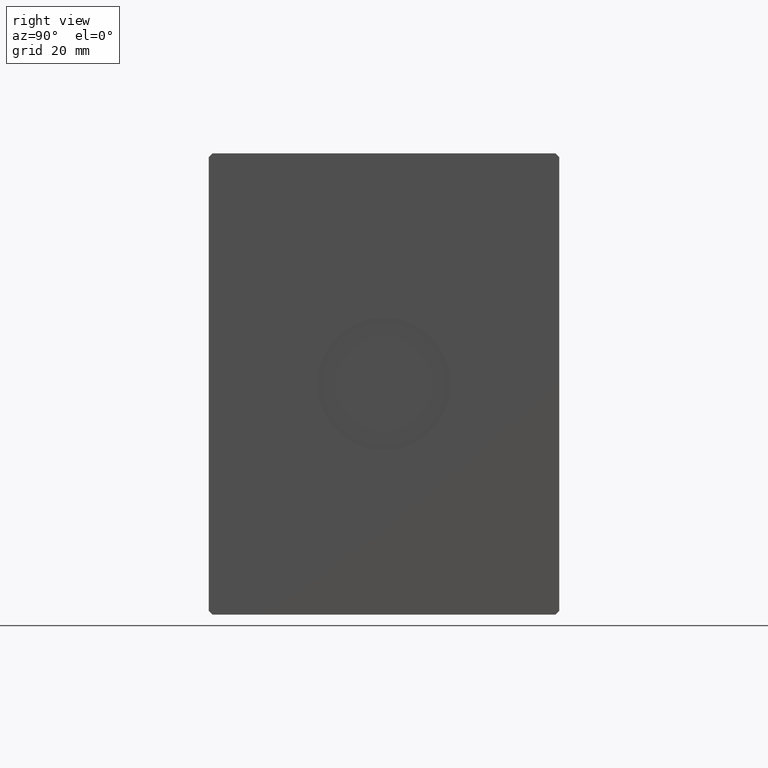
[diagram: clean part render]
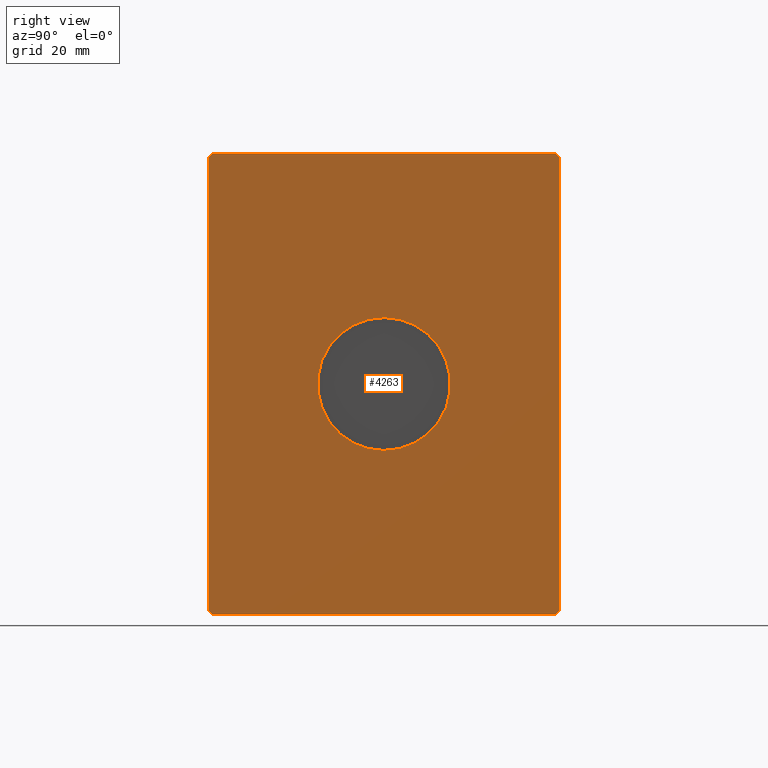
[diagram: same view with one face highlighted and labeled with its STEP entity id]
A machine part, right view. The second image highlights one B-rep face of the part: STEP entity #4263.
In plain terms, the highlighted planar face has unit normal (1, 0, 0).
Its self-contained STEP definition (entity closure, byte-faithful):
#112 = ORIENTED_EDGE ( 'NONE', *, *, #3831, .T. ) ;
#735 = CARTESIAN_POINT ( 'NONE',  ( 121.0000000000000000, 46.50000000000000000, -62.50000000000000000 ) ) ;
#752 = DIRECTION ( 'NONE',  ( 0.000000000000000000, -1.128275431529630729E-16, 1.000000000000000000 ) ) ;
#1071 = CARTESIAN_POINT ( 'NONE',  ( 121.0000000000000000, 2.204364238465235428E-15, 18.00000000000000000 ) ) ;
#1198 = VERTEX_POINT ( 'NONE', #39426 ) ;
#1202 = CARTESIAN_POINT ( 'NONE',  ( 121.0000000000000000, -46.50000000000000000, -62.50000000000001421 ) ) ;
#1235 = ORIENTED_EDGE ( 'NONE', *, *, #11204, .F. ) ;
#1772 = DIRECTION ( 'NONE',  ( 0.000000000000000000, 0.7071067811865574537, 0.7071067811865376918 ) ) ;
#1924 = AXIS2_PLACEMENT_3D ( 'NONE', #15408, #28322, #25153 ) ;
#2427 = CARTESIAN_POINT ( 'NONE',  ( 121.0000000000000000, -47.49999999999999289, -61.50000000000001421 ) ) ;
#2720 = CARTESIAN_POINT ( 'NONE',  ( 121.0000000000000000, 0.000000000000000000, -18.00000000000000000 ) ) ;
#3368 = VERTEX_POINT ( 'NONE', #20942 ) ;
#3404 = ORIENTED_EDGE ( 'NONE', *, *, #14907, .T. ) ;
#3606 = ORIENTED_EDGE ( 'NONE', *, *, #3990, .T. ) ;
#3831 = EDGE_CURVE ( 'NONE', #23346, #36064, #17450, .T. ) ;
#3990 = EDGE_CURVE ( 'NONE', #36064, #7125, #41804, .T. ) ;
#4263 = ADVANCED_FACE ( 'NONE', ( #22484, #23310 ), #16536, .T. ) ;
#4288 = VERTEX_POINT ( 'NONE', #9770 ) ;
#4439 = EDGE_CURVE ( 'NONE', #7125, #3368, #5717, .T. ) ;
#4960 = LINE ( 'NONE', #24218, #39493 ) ;
#5189 = CARTESIAN_POINT ( 'NONE',  ( 121.0000000000000000, -47.50000000000001421, 61.49999999999997868 ) ) ;
#5193 = VECTOR ( 'NONE', #30379, 1000.000000000000000 ) ;
#5717 = LINE ( 'NONE', #31331, #37628 ) ;
#7125 = VERTEX_POINT ( 'NONE', #1202 ) ;
#7147 = CARTESIAN_POINT ( 'NONE',  ( 121.0000000000000000, 47.50000000000000000, 61.49999999999998579 ) ) ;
#7704 = CARTESIAN_POINT ( 'NONE',  ( 121.0000000000000000, -46.50000000000001421, 62.49999999999997868 ) ) ;
#8233 = CARTESIAN_POINT ( 'NONE',  ( 121.0000000000000000, 46.50000000000000000, 62.49999999999998579 ) ) ;
#8568 = VECTOR ( 'NONE', #37776, 1000.000000000000114 ) ;
#9112 = ORIENTED_EDGE ( 'NONE', *, *, #22169, .T. ) ;
#9701 = AXIS2_PLACEMENT_3D ( 'NONE', #14666, #40290, #11282 ) ;
#9770 = CARTESIAN_POINT ( 'NONE',  ( 121.0000000000000000, 47.50000000000001421, -61.50000000000001421 ) ) ;
#9974 = DIRECTION ( 'NONE',  ( 1.000000000000000000, 0.000000000000000000, 0.000000000000000000 ) ) ;
#10281 = CARTESIAN_POINT ( 'NONE',  ( 121.0000000000000000, 47.50000000000001421, -61.50000000000001421 ) ) ;
#10914 = VECTOR ( 'NONE', #752, 1000.000000000000000 ) ;
#11204 = EDGE_CURVE ( 'NONE', #30133, #29579, #30326, .T. ) ;
#11282 = DIRECTION ( 'NONE',  ( 0.000000000000000000, 0.000000000000000000, -1.000000000000000000 ) ) ;
#11582 = VECTOR ( 'NONE', #30210, 1000.000000000000114 ) ;
#13224 = LINE ( 'NONE', #7704, #33788 ) ;
#13694 = EDGE_LOOP ( 'NONE', ( #1235, #30681 ) ) ;
#13702 = DIRECTION ( 'NONE',  ( 0.000000000000000000, -1.000000000000000000, -7.461176240760460157E-17 ) ) ;
#14666 = CARTESIAN_POINT ( 'NONE',  ( 121.0000000000000000, 0.000000000000000000, 0.000000000000000000 ) ) ;
#14858 = CARTESIAN_POINT ( 'NONE',  ( 121.0000000000000000, -47.50000000000001421, 61.49999999999997868 ) ) ;
#14907 = EDGE_CURVE ( 'NONE', #1198, #23346, #13224, .T. ) ;
#14917 = VERTEX_POINT ( 'NONE', #23594 ) ;
#14949 = EDGE_CURVE ( 'NONE', #3368, #4288, #29739, .T. ) ;
#15408 = CARTESIAN_POINT ( 'NONE',  ( 121.0000000000000000, 0.000000000000000000, 0.000000000000000000 ) ) ;
#15517 = VECTOR ( 'NONE', #1772, 999.9999999999998863 ) ;
#15654 = DIRECTION ( 'NONE',  ( 0.000000000000000000, 1.000000000000000000, 1.492235248152092278E-16 ) ) ;
#15913 = ORIENTED_EDGE ( 'NONE', *, *, #21800, .T. ) ;
#16536 = PLANE ( 'NONE',  #36926 ) ;
#17284 = LINE ( 'NONE', #7147, #11582 ) ;
#17450 = LINE ( 'NONE', #5189, #5193 ) ;
#17946 = ORIENTED_EDGE ( 'NONE', *, *, #4439, .T. ) ;
#20617 = LINE ( 'NONE', #10281, #10914 ) ;
#20942 = CARTESIAN_POINT ( 'NONE',  ( 121.0000000000000000, 46.50000000000000000, -62.50000000000000000 ) ) ;
#21800 = EDGE_CURVE ( 'NONE', #14917, #37725, #17284, .T. ) ;
#22169 = EDGE_CURVE ( 'NONE', #4288, #14917, #20617, .T. ) ;
#22484 = FACE_BOUND ( 'NONE', #13694, .T. ) ;
#23069 = ORIENTED_EDGE ( 'NONE', *, *, #14949, .T. ) ;
#23310 = FACE_OUTER_BOUND ( 'NONE', #32600, .T. ) ;
#23346 = VERTEX_POINT ( 'NONE', #14858 ) ;
#23386 = DIRECTION ( 'NONE',  ( 0.000000000000000000, -0.7071067811865474617, -0.7071067811865474617 ) ) ;
#23594 = CARTESIAN_POINT ( 'NONE',  ( 121.0000000000000000, 47.50000000000000000, 61.49999999999998579 ) ) ;
#24218 = CARTESIAN_POINT ( 'NONE',  ( 121.0000000000000000, 46.50000000000000000, 62.49999999999998579 ) ) ;
#25153 = DIRECTION ( 'NONE',  ( 0.000000000000000000, 0.000000000000000000, -1.000000000000000000 ) ) ;
#28046 = EDGE_CURVE ( 'NONE', #29579, #30133, #32701, .T. ) ;
#28322 = DIRECTION ( 'NONE',  ( 1.000000000000000000, 0.000000000000000000, 0.000000000000000000 ) ) ;
#29353 = EDGE_CURVE ( 'NONE', #37725, #1198, #4960, .T. ) ;
#29579 = VERTEX_POINT ( 'NONE', #1071 ) ;
#29739 = LINE ( 'NONE', #735, #15517 ) ;
#30133 = VERTEX_POINT ( 'NONE', #2720 ) ;
#30210 = DIRECTION ( 'NONE',  ( 0.000000000000000000, -0.7071067811865474617, 0.7071067811865474617 ) ) ;
#30326 = CIRCLE ( 'NONE', #1924, 18.00000000000000000 ) ;
#30379 = DIRECTION ( 'NONE',  ( 0.000000000000000000, 1.692413147294445970E-16, -1.000000000000000000 ) ) ;
#30681 = ORIENTED_EDGE ( 'NONE', *, *, #28046, .F. ) ;
#31331 = CARTESIAN_POINT ( 'NONE',  ( 121.0000000000000000, -46.50000000000000000, -62.50000000000001421 ) ) ;
#32600 = EDGE_LOOP ( 'NONE', ( #15913, #38639, #3404, #112, #3606, #17946, #23069, #9112 ) ) ;
#32701 = CIRCLE ( 'NONE', #9701, 18.00000000000000000 ) ;
#33788 = VECTOR ( 'NONE', #23386, 1000.000000000000114 ) ;
#36064 = VERTEX_POINT ( 'NONE', #39503 ) ;
#36926 = AXIS2_PLACEMENT_3D ( 'NONE', #39180, #9974, #39391 ) ;
#37628 = VECTOR ( 'NONE', #15654, 1000.000000000000000 ) ;
#37725 = VERTEX_POINT ( 'NONE', #8233 ) ;
#37776 = DIRECTION ( 'NONE',  ( 0.000000000000000000, 0.7071067811865451302, -0.7071067811865500152 ) ) ;
#38639 = ORIENTED_EDGE ( 'NONE', *, *, #29353, .T. ) ;
#39180 = CARTESIAN_POINT ( 'NONE',  ( 121.0000000000000000, 0.000000000000000000, 0.000000000000000000 ) ) ;
#39391 = DIRECTION ( 'NONE',  ( 0.000000000000000000, 0.000000000000000000, -1.000000000000000000 ) ) ;
#39426 = CARTESIAN_POINT ( 'NONE',  ( 121.0000000000000000, -46.50000000000001421, 62.49999999999997868 ) ) ;
#39493 = VECTOR ( 'NONE', #13702, 1000.000000000000000 ) ;
#39503 = CARTESIAN_POINT ( 'NONE',  ( 121.0000000000000000, -47.49999999999999289, -61.50000000000001421 ) ) ;
#40290 = DIRECTION ( 'NONE',  ( 1.000000000000000000, 0.000000000000000000, 0.000000000000000000 ) ) ;
#41804 = LINE ( 'NONE', #2427, #8568 ) ;